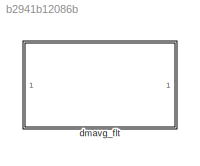
MODEL slx_b2941b12086b
KIND library
CONFIG AbsTol = auto
CONFIG EnableMultiTasking = off
CONFIG FixedStep = auto
CONFIG MaxStep = auto
CONFIG MinStep = auto
CONFIG RelTol = 1e-3
CONFIG SampleTimeConstraint = Unconstrained
CONFIG SolverName = VariableStepAuto
CONFIG StartTime = 0.0
CONFIG StopTime = 10.0
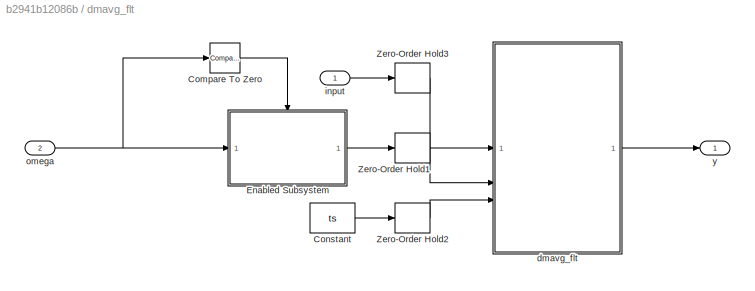
BLOCK [SubSystem] dmavg_flt
BLOCK [Reference] dmavg_flt/Compare To Zero  REF=simulink/Logic and Bit
Operations/Compare
To Zero
  SourceBlock = simulink/Logic and Bit\nOperations/Compare\nTo Zero
  SourceType = Compare To Zero
BLOCK [Constant] dmavg_flt/Constant
  Value = ts
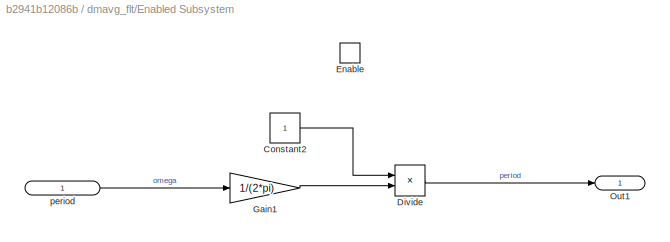
BLOCK [SubSystem] dmavg_flt/Enabled Subsystem
  TreatAsAtomicUnit = on
BLOCK [Constant] dmavg_flt/Enabled Subsystem/Constant2
BLOCK [Product] dmavg_flt/Enabled Subsystem/Divide
  Inputs = */
BLOCK [EnablePort] dmavg_flt/Enabled Subsystem/Enable
BLOCK [Gain] dmavg_flt/Enabled Subsystem/Gain1
  Gain = 1/(2*pi)
BLOCK [Outport] dmavg_flt/Enabled Subsystem/Out1
  IconDisplay = Signal name
BLOCK [Inport] dmavg_flt/Enabled Subsystem/period
  IconDisplay = Signal name
BLOCK [ZeroOrderHold] dmavg_flt/Zero-Order Hold1
  SampleTime = -1
BLOCK [ZeroOrderHold] dmavg_flt/Zero-Order Hold2
  SampleTime = -1
BLOCK [ZeroOrderHold] dmavg_flt/Zero-Order Hold3
  SampleTime = -1
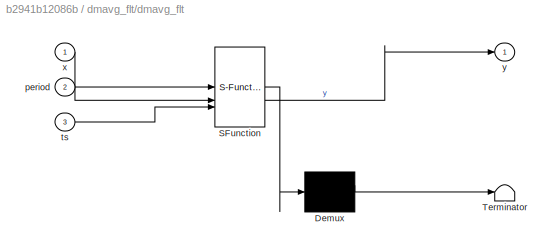
BLOCK [SubSystem] dmavg_flt/dmavg_flt
  ErrorFcn = Stateflow.Translate.translate
  PermitHierarchicalResolution = ExplicitOnly
  SFBlockType = MATLAB Function
  TreatAsAtomicUnit = on
BLOCK [Demux] dmavg_flt/dmavg_flt/ Demux 
  Outputs = 1
BLOCK [S-Function] dmavg_flt/dmavg_flt/ SFunction 
  EnableBusSupport = off
  FunctionName = sf_sfun
  PortCounts = [3 2]
  SFcnIsStateOwnerBlock = off
  SFunctionDeploymentMode = off
  Tag = Stateflow S-Function 25
BLOCK [Terminator] dmavg_flt/dmavg_flt/ Terminator 
BLOCK [Inport] dmavg_flt/dmavg_flt/period
  Port = 2
BLOCK [Inport] dmavg_flt/dmavg_flt/ts
  Port = 3
BLOCK [Inport] dmavg_flt/dmavg_flt/x
BLOCK [Outport] dmavg_flt/dmavg_flt/y
  VectorParamsAs1DForOutWhenUnconnected = off
BLOCK [Inport] dmavg_flt/input
BLOCK [Inport] dmavg_flt/omega
  Port = 2
BLOCK [Outport] dmavg_flt/y
LINE dmavg_flt/Compare To Zero:1 -> dmavg_flt/Enabled Subsystem:enable
LINE dmavg_flt/Constant:1 -> dmavg_flt/Zero-Order Hold2:1
LINE dmavg_flt/Enabled Subsystem/Constant2:1 -> dmavg_flt/Enabled Subsystem/Divide:1
LINE dmavg_flt/Enabled Subsystem/Divide:1 -> dmavg_flt/Enabled Subsystem/Out1:1
LINE dmavg_flt/Enabled Subsystem/Gain1:1 -> dmavg_flt/Enabled Subsystem/Divide:2
LINE dmavg_flt/Enabled Subsystem/period:1 -> dmavg_flt/Enabled Subsystem/Gain1:1
LINE dmavg_flt/Enabled Subsystem:1 -> dmavg_flt/Zero-Order Hold1:1
LINE dmavg_flt/Zero-Order Hold1:1 -> dmavg_flt/dmavg_flt:2
LINE dmavg_flt/Zero-Order Hold2:1 -> dmavg_flt/dmavg_flt:3
LINE dmavg_flt/Zero-Order Hold3:1 -> dmavg_flt/dmavg_flt:1
LINE dmavg_flt/dmavg_flt:1 -> dmavg_flt/y:1
LINE dmavg_flt/input:1 -> dmavg_flt/Zero-Order Hold3:1
NET dmavg_flt/omega:1 -> dmavg_flt/Compare To Zero:1, dmavg_flt/Enabled Subsystem:1
note: NET lines group one-source signal fan-out (src -> all destinations, sorted); 1:1 wires keep LINE
CHART dmavg_flt/dmavg_flt states=1 transitions=1
  STATE_LABEL 'eML_blk_kernel()'
  STATE_LABEL 'SCRIPT:\nfunction y = dmavg_flt(x, period, ts)\n    persistent buffer idx length_period sum_buffer Nmax\n\n    Nmax = 1600;\n\n    if isempty(buffer)\n        buffer = zeros(1, Nmax);\n        idx = 1;\n        sum_buffer = 0;\n    end\n\n    length_period = floor(period / ts) + 1;\n\n    % Compute index of oldest sample (circular buffer)\n    old_idx = mod(idx - length_period - 1, Nmax) + 1;\n    xn = buffer(old...<+217ch>'
CHART  states=0 transitions=0
